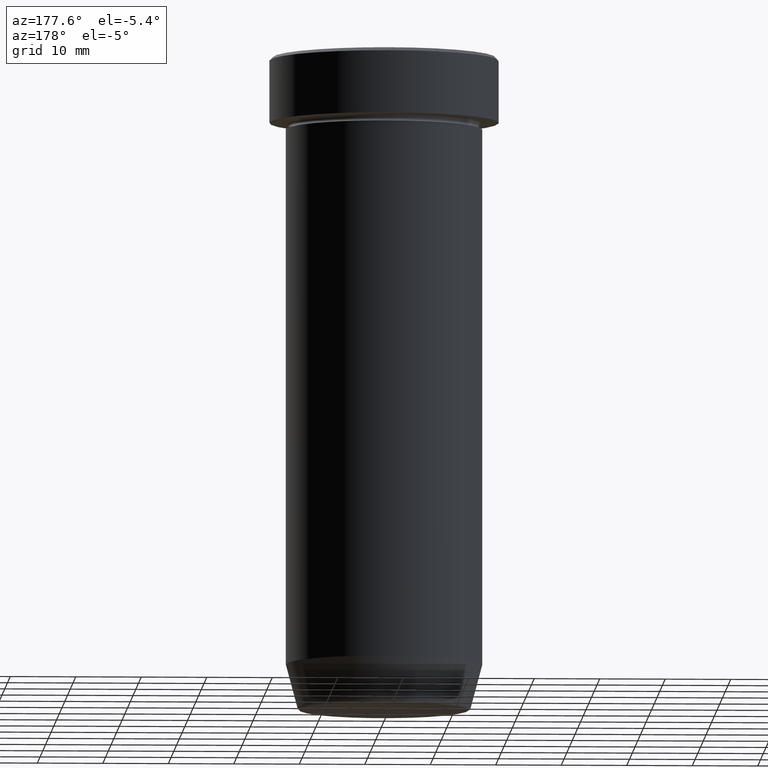
[diagram: clean part render]
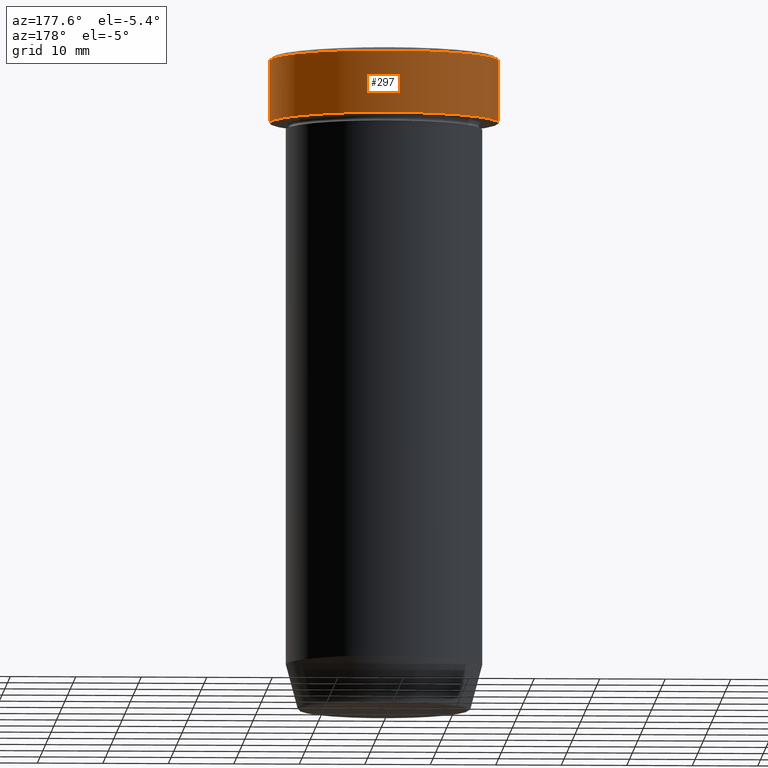
[diagram: same view with one face highlighted and labeled with its STEP entity id]
A machine part, auxiliary view. The second image highlights one B-rep face of the part: STEP entity #297.
In plain terms, the highlighted cylindrical surface (partial cylindrical patch) has radius 17.5 mm, axis along (-0, -0, 1).
Its self-contained STEP definition (entity closure, byte-faithful):
#1 = CIRCLE ( 'NONE', #545, 17.50000000000000000 ) ;
#3 = CARTESIAN_POINT ( 'NONE',  ( 17.50000000000000000, 0.000000000000000000, -0.5000000000000073275 ) ) ;
#6 = DIRECTION ( 'NONE',  ( -0.000000000000000000, -0.000000000000000000, 1.000000000000000000 ) ) ;
#16 = CARTESIAN_POINT ( 'NONE',  ( 0.000000000000000000, 0.000000000000000000, -0.5000000000000073275 ) ) ;
#24 = ORIENTED_EDGE ( 'NONE', *, *, #374, .F. ) ;
#61 = VERTEX_POINT ( 'NONE', #268 ) ;
#63 = DIRECTION ( 'NONE',  ( -0.000000000000000000, -0.000000000000000000, 1.000000000000000000 ) ) ;
#68 = DIRECTION ( 'NONE',  ( -0.000000000000000000, -0.000000000000000000, 1.000000000000000000 ) ) ;
#72 = DIRECTION ( 'NONE',  ( 1.000000000000000000, 0.000000000000000000, 0.000000000000000000 ) ) ;
#95 = EDGE_CURVE ( 'NONE', #61, #298, #1, .T. ) ;
#99 = VERTEX_POINT ( 'NONE', #568 ) ;
#135 = EDGE_CURVE ( 'NONE', #447, #61, #178, .T. ) ;
#173 = EDGE_CURVE ( 'NONE', #99, #447, #385, .T. ) ;
#178 = LINE ( 'NONE', #179, #504 ) ;
#179 = CARTESIAN_POINT ( 'NONE',  ( -17.50000000000000000, 2.143131898507868248E-15, 0.000000000000000000 ) ) ;
#209 = LINE ( 'NONE', #217, #551 ) ;
#217 = CARTESIAN_POINT ( 'NONE',  ( 17.50000000000000000, 0.000000000000000000, 0.000000000000000000 ) ) ;
#222 = DIRECTION ( 'NONE',  ( 1.000000000000000000, 0.000000000000000000, 0.000000000000000000 ) ) ;
#239 = CYLINDRICAL_SURFACE ( 'NONE', #511, 17.50000000000000000 ) ;
#250 = AXIS2_PLACEMENT_3D ( 'NONE', #575, #311, #72 ) ;
#257 = ORIENTED_EDGE ( 'NONE', *, *, #135, .T. ) ;
#268 = CARTESIAN_POINT ( 'NONE',  ( -17.50000000000000000, 2.143131898507868248E-15, -0.5000000000000073275 ) ) ;
#297 = ADVANCED_FACE ( 'NONE', ( #347 ), #239, .T. ) ;
#298 = VERTEX_POINT ( 'NONE', #3 ) ;
#311 = DIRECTION ( 'NONE',  ( -0.000000000000000000, -0.000000000000000000, 1.000000000000000000 ) ) ;
#318 = ORIENTED_EDGE ( 'NONE', *, *, #173, .T. ) ;
#338 = EDGE_LOOP ( 'NONE', ( #318, #257, #554, #24 ) ) ;
#347 = FACE_OUTER_BOUND ( 'NONE', #338, .T. ) ;
#356 = CARTESIAN_POINT ( 'NONE',  ( -17.50000000000000000, 2.143131898507868248E-15, -9.999999999999998224 ) ) ;
#374 = EDGE_CURVE ( 'NONE', #99, #298, #209, .T. ) ;
#385 = CIRCLE ( 'NONE', #250, 17.50000000000000000 ) ;
#402 = DIRECTION ( 'NONE',  ( 0.000000000000000000, 0.000000000000000000, -1.000000000000000000 ) ) ;
#419 = DIRECTION ( 'NONE',  ( 1.000000000000000000, 0.000000000000000000, 0.000000000000000000 ) ) ;
#447 = VERTEX_POINT ( 'NONE', #356 ) ;
#504 = VECTOR ( 'NONE', #68, 1000.000000000000000 ) ;
#511 = AXIS2_PLACEMENT_3D ( 'NONE', #516, #6, #419 ) ;
#516 = CARTESIAN_POINT ( 'NONE',  ( 0.000000000000000000, 0.000000000000000000, 0.000000000000000000 ) ) ;
#545 = AXIS2_PLACEMENT_3D ( 'NONE', #16, #402, #222 ) ;
#551 = VECTOR ( 'NONE', #63, 1000.000000000000000 ) ;
#554 = ORIENTED_EDGE ( 'NONE', *, *, #95, .T. ) ;
#568 = CARTESIAN_POINT ( 'NONE',  ( 17.50000000000000000, 0.000000000000000000, -9.999999999999998224 ) ) ;
#575 = CARTESIAN_POINT ( 'NONE',  ( 0.000000000000000000, 0.000000000000000000, -9.999999999999998224 ) ) ;